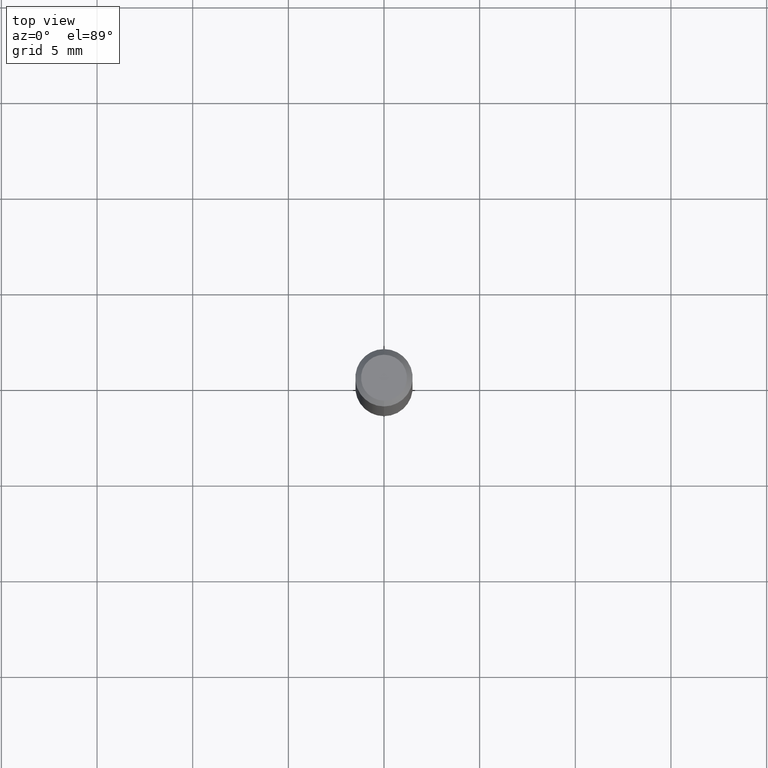
[diagram: clean part render]
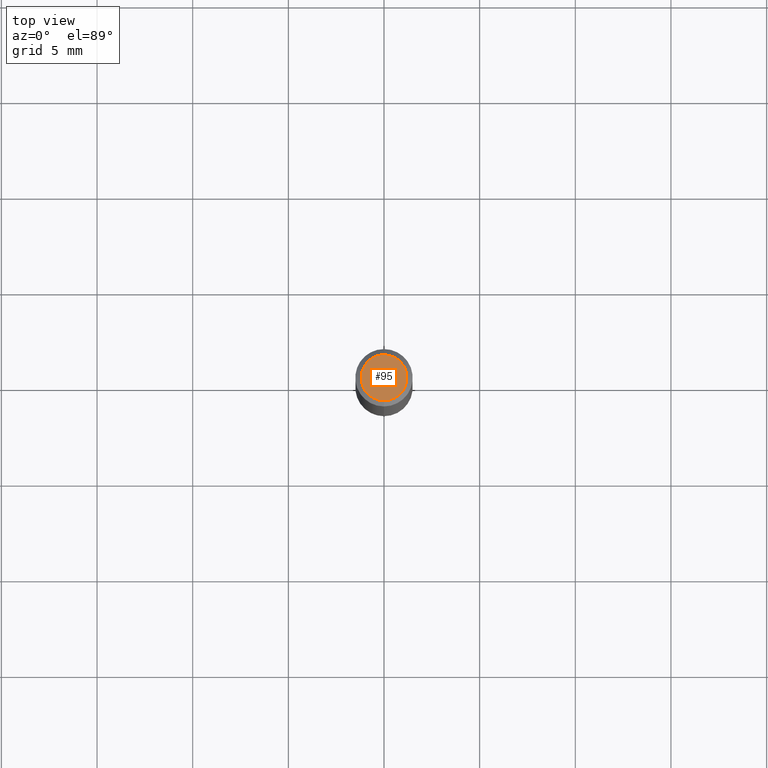
[diagram: same view with one face highlighted and labeled with its STEP entity id]
A machine part, top view. The second image highlights one B-rep face of the part: STEP entity #95.
In plain terms, the highlighted planar face has unit normal (-0, 0, 1).
Its self-contained STEP definition (entity closure, byte-faithful):
#93=EDGE_CURVE('',#203,#155,#228,.T.);
#95=ADVANCED_FACE('',(#230),#231,.T.);
#155=VERTEX_POINT('',#300);
#171=EDGE_CURVE('',#155,#203,#317,.T.);
#203=VERTEX_POINT('',#352);
#228=CIRCLE('',#373,1.2);
#230=FACE_OUTER_BOUND('',#375,.T.);
#231=PLANE('',#376);
#300=CARTESIAN_POINT('',(0.0,1.2,0.0));
#317=CIRCLE('',#485,1.2);
#352=CARTESIAN_POINT('',(1.46952762458685E-016,-1.2,0.0));
#373=AXIS2_PLACEMENT_3D('',#536,#537,#538);
#375=EDGE_LOOP('',(#540,#541));
#376=AXIS2_PLACEMENT_3D('',#542,#543,#544);
#485=AXIS2_PLACEMENT_3D('',#654,#655,#656);
#536=CARTESIAN_POINT('',(0.0,0.0,0.0));
#537=DIRECTION('',(0.0,0.0,-1.0));
#538=DIRECTION('',(0.0,1.0,0.0));
#540=ORIENTED_EDGE('',*,*,#171,.F.);
#541=ORIENTED_EDGE('',*,*,#93,.F.);
#542=CARTESIAN_POINT('',(0.0,0.6,0.0));
#543=DIRECTION('',(-0.0,0.0,1.0));
#544=DIRECTION('',(0.0,-1.0,0.0));
#654=CARTESIAN_POINT('',(0.0,0.0,0.0));
#655=DIRECTION('',(0.0,0.0,-1.0));
#656=DIRECTION('',(0.0,1.0,0.0));